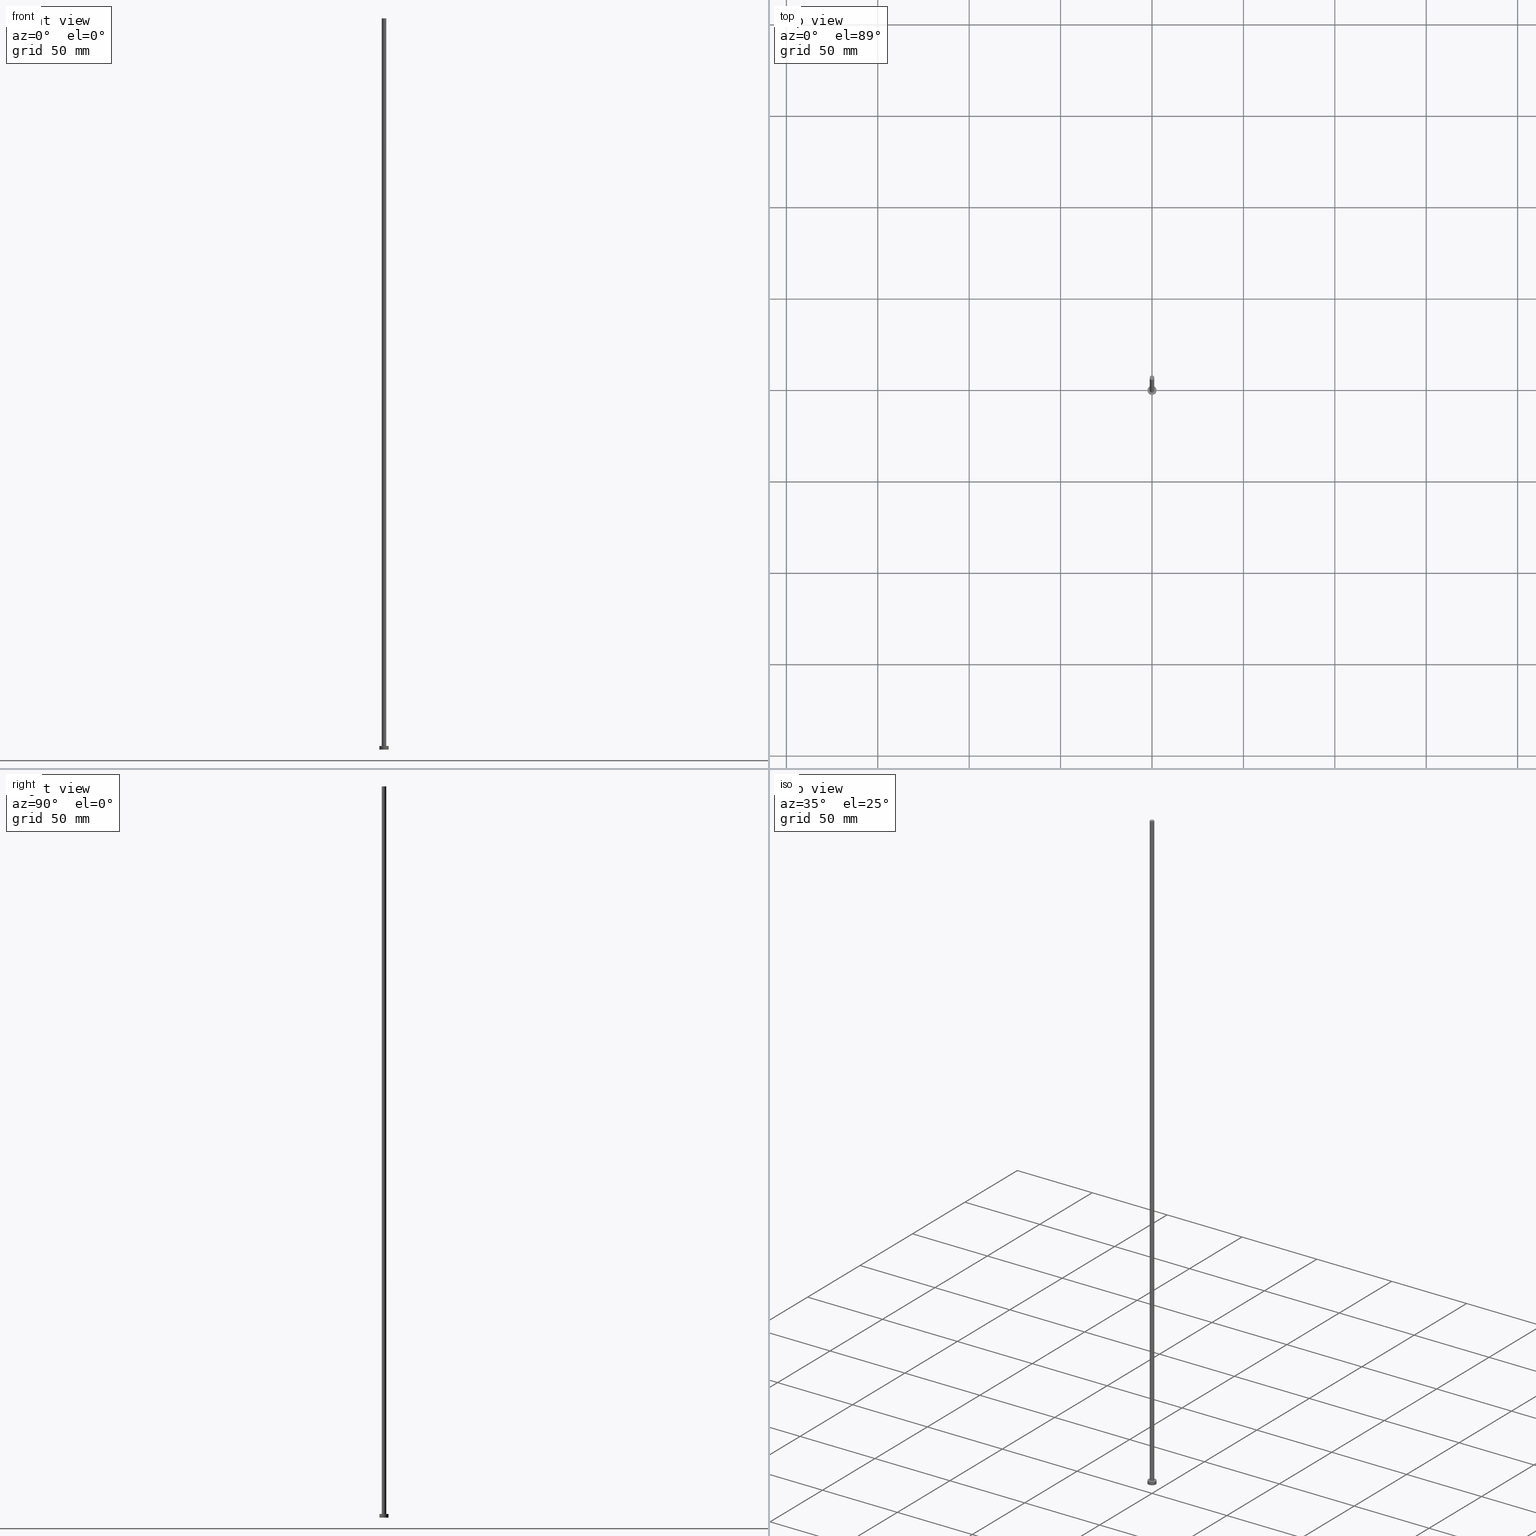
[diagram: canonical four-view strip — front | top / right | iso, engineering-drawing reading convention]
A machine part, canonical four-view strip (front | top / right | iso — engineering-drawing reading convention). The complete STEP part file that produces these views, byte-faithful:
ISO-10303-21;
HEADER;
FILE_DESCRIPTION (( 'STEP AP203' ),
    '1' );
FILE_NAME ('aa84.STEP',
    '2023-02-13T16:39:37',
    ( '' ),
    ( '' ),
    'SwSTEP 2.0',
    'SolidWorks 2019',
    '' );
FILE_SCHEMA (( 'CONFIG_CONTROL_DESIGN' ));
ENDSEC;

DATA;
#1 = ORIENTED_EDGE ( 'NONE', *, *, #165, .F. ) ;
#2 = COORDINATED_UNIVERSAL_TIME_OFFSET ( 1, 0, .AHEAD. ) ;
#3 = DIRECTION ( 'NONE',  ( -1.000000000000000000, 0.000000000000000000, 0.000000000000000000 ) ) ;
#4 = ORIENTED_EDGE ( 'NONE', *, *, #54, .F. ) ;
#5 = APPROVAL_ROLE ( '' ) ;
#6 = AXIS2_PLACEMENT_3D ( 'NONE', #140, #225, #77 ) ;
#7 = PRODUCT_DEFINITION_FORMATION_WITH_SPECIFIED_SOURCE ( 'LIBOVOLN�', '', #29, .NOT_KNOWN. ) ;
#8 = CARTESIAN_POINT ( 'NONE',  ( 1.250000000000000000, 1.530808498934191571E-16, 400.0000000000000000 ) ) ;
#9 = ORIENTED_EDGE ( 'NONE', *, *, #21, .F. ) ;
#10 = PERSON_AND_ORGANIZATION ( #189, #46 ) ;
#11 = FACE_OUTER_BOUND ( 'NONE', #141, .T. ) ;
#12 = APPROVAL ( #201, 'NEUR�EN�' ) ;
#13 = EDGE_CURVE ( 'NONE', #66, #74, #251, .T. ) ;
#14 = AXIS2_PLACEMENT_3D ( 'NONE', #57, #154, #111 ) ;
#15 = CARTESIAN_POINT ( 'NONE',  ( 0.000000000000000000, 0.000000000000000000, 0.000000000000000000 ) ) ;
#16 = ORIENTED_EDGE ( 'NONE', *, *, #96, .T. ) ;
#17 = FACE_BOUND ( 'NONE', #245, .T. ) ;
#18 = EDGE_CURVE ( 'NONE', #97, #223, #205, .T. ) ;
#19 = ORIENTED_EDGE ( 'NONE', *, *, #220, .F. ) ;
#20 = FACE_OUTER_BOUND ( 'NONE', #152, .T. ) ;
#21 = EDGE_CURVE ( 'NONE', #200, #55, #148, .T. ) ;
#22 = PERSON_AND_ORGANIZATION ( #189, #46 ) ;
#23 = LINE ( 'NONE', #94, #114 ) ;
#24 = CARTESIAN_POINT ( 'NONE',  ( 0.000000000000000000, 0.000000000000000000, 2.000000000000000000 ) ) ;
#25 = ORIENTED_EDGE ( 'NONE', *, *, #101, .T. ) ;
#26 = APPROVAL_STATUS ( 'not_yet_approved' ) ;
#27 = DIRECTION ( 'NONE',  ( -1.000000000000000000, 0.000000000000000000, 0.000000000000000000 ) ) ;
#28 = ORIENTED_EDGE ( 'NONE', *, *, #255, .T. ) ;
#29 = PRODUCT ( 'aa84', 'aa84', '', ( #70 ) ) ;
#30 = CC_DESIGN_PERSON_AND_ORGANIZATION_ASSIGNMENT ( #142, #227, ( #7 ) ) ;
#31 = EDGE_LOOP ( 'NONE', ( #162, #88 ) ) ;
#32 = CIRCLE ( 'NONE', #234, 2.500000000000000000 ) ;
#33 = CARTESIAN_POINT ( 'NONE',  ( 0.000000000000000000, 0.000000000000000000, 400.0000000000000000 ) ) ;
#34 = CARTESIAN_POINT ( 'NONE',  ( 0.000000000000000000, 0.000000000000000000, 0.000000000000000000 ) ) ;
#35 = APPROVAL ( #161, 'NEUR�EN�' ) ;
#36 = DIRECTION ( 'NONE',  ( -0.000000000000000000, -0.000000000000000000, -1.000000000000000000 ) ) ;
#37 = APPROVAL_ROLE ( '' ) ;
#38 = CALENDAR_DATE ( 2023, 13, 2 ) ;
#39 = CYLINDRICAL_SURFACE ( 'NONE', #149, 1.250000000000000000 ) ;
#40 = ORIENTED_EDGE ( 'NONE', *, *, #186, .F. ) ;
#41 = SECURITY_CLASSIFICATION_LEVEL ( 'unclassified' ) ;
#42 = ORIENTED_EDGE ( 'NONE', *, *, #49, .F. ) ;
#43 = DIRECTION ( 'NONE',  ( 1.000000000000000000, 0.000000000000000000, 0.000000000000000000 ) ) ;
#44 = DIRECTION ( 'NONE',  ( 0.000000000000000000, 0.000000000000000000, 1.000000000000000000 ) ) ;
#45 = AXIS2_PLACEMENT_3D ( 'NONE', #209, #156, #3 ) ;
#46 = ORGANIZATION ( 'NEUR�EN�', 'NEUR�EN�', '' ) ;
#47 = APPLICATION_CONTEXT ( 'configuration controlled 3d designs of mechanical parts and assemblies' ) ;
#48 = MANIFOLD_SOLID_BREP ( 'P�idat vysunut�m3', #188 ) ;
#49 = EDGE_CURVE ( 'NONE', #116, #55, #61, .T. ) ;
#50 = CARTESIAN_POINT ( 'NONE',  ( 0.000000000000000000, 0.000000000000000000, 400.0000000000000000 ) ) ;
#51 = CARTESIAN_POINT ( 'NONE',  ( 1.250000000000000000, 1.530808498934191571E-16, 2.000000000000000000 ) ) ;
#52 = DATE_TIME_ROLE ( 'classification_date' ) ;
#53 = CARTESIAN_POINT ( 'NONE',  ( -2.500000000000000000, 0.000000000000000000, 2.000000000000000000 ) ) ;
#54 = EDGE_CURVE ( 'NONE', #200, #95, #32, .T. ) ;
#55 = VERTEX_POINT ( 'NONE', #62 ) ;
#56 = PERSON_AND_ORGANIZATION_ROLE ( 'creator' ) ;
#57 = CARTESIAN_POINT ( 'NONE',  ( 0.000000000000000000, 0.000000000000000000, 2.000000000000000000 ) ) ;
#58 = ORIENTED_EDGE ( 'NONE', *, *, #130, .F. ) ;
#59 = PERSON_AND_ORGANIZATION ( #189, #46 ) ;
#60 = ORIENTED_EDGE ( 'NONE', *, *, #255, .F. ) ;
#61 = CIRCLE ( 'NONE', #86, 2.500000000000000000 ) ;
#62 = CARTESIAN_POINT ( 'NONE',  ( -2.500000000000000000, 0.000000000000000000, 0.000000000000000000 ) ) ;
#63 = AXIS2_PLACEMENT_3D ( 'NONE', #24, #131, #214 ) ;
#64 = DIRECTION ( 'NONE',  ( 0.000000000000000000, 0.000000000000000000, 1.000000000000000000 ) ) ;
#65 = CARTESIAN_POINT ( 'NONE',  ( 2.500000000000000000, 3.061616997868383141E-16, 0.000000000000000000 ) ) ;
#66 = VERTEX_POINT ( 'NONE', #123 ) ;
#67 = PERSON_AND_ORGANIZATION_ROLE ( 'creator' ) ;
#68 = LINE ( 'NONE', #8, #124 ) ;
#69 = ORIENTED_EDGE ( 'NONE', *, *, #18, .T. ) ;
#70 = MECHANICAL_CONTEXT ( 'NONE', #47, 'mechanical' ) ;
#71 = ORIENTED_EDGE ( 'NONE', *, *, #18, .F. ) ;
#72 = APPROVAL_DATE_TIME ( #179, #183 ) ;
#73 = CARTESIAN_POINT ( 'NONE',  ( 0.000000000000000000, 0.000000000000000000, 0.000000000000000000 ) ) ;
#74 = VERTEX_POINT ( 'NONE', #102 ) ;
#75 = AXIS2_PLACEMENT_3D ( 'NONE', #121, #249, #99 ) ;
#76 = APPROVAL_PERSON_ORGANIZATION ( #132, #183, #37 ) ;
#77 = DIRECTION ( 'NONE',  ( 1.000000000000000000, 0.000000000000000000, 0.000000000000000000 ) ) ;
#78 = APPLICATION_PROTOCOL_DEFINITION ( 'international standard', 'config_control_design', 1994, #171 ) ;
#79 = UNCERTAINTY_MEASURE_WITH_UNIT (LENGTH_MEASURE( 1.000000000000000082E-05 ), #197, 'distance_accuracy_value', 'NONE');
#80 = CYLINDRICAL_SURFACE ( 'NONE', #100, 2.500000000000000000 ) ;
#81 = PRODUCT_RELATED_PRODUCT_CATEGORY ( 'detail', '', ( #29 ) ) ;
#82 = AXIS2_PLACEMENT_3D ( 'NONE', #187, #167, #168 ) ;
#83 = CARTESIAN_POINT ( 'NONE',  ( 0.000000000000000000, 0.000000000000000000, 400.0000000000000000 ) ) ;
#84 = SHAPE_DEFINITION_REPRESENTATION ( #248, #139 ) ;
#85 = ADVANCED_FACE ( 'NONE', ( #11 ), #80, .T. ) ;
#86 = AXIS2_PLACEMENT_3D ( 'NONE', #144, #64, #43 ) ;
#87 = FACE_OUTER_BOUND ( 'NONE', #31, .T. ) ;
#88 = ORIENTED_EDGE ( 'NONE', *, *, #186, .T. ) ;
#89 = DIRECTION ( 'NONE',  ( 1.000000000000000000, 0.000000000000000000, -0.000000000000000000 ) ) ;
#90 = APPROVAL_PERSON_ORGANIZATION ( #22, #12, #5 ) ;
#91 = PERSON_AND_ORGANIZATION_ROLE ( 'design_owner' ) ;
#92 = EDGE_LOOP ( 'NONE', ( #19, #4, #238, #226 ) ) ;
#93 = APPROVAL_DATE_TIME ( #138, #12 ) ;
#94 = CARTESIAN_POINT ( 'NONE',  ( 2.500000000000000000, 3.061616997868383141E-16, 2.000000000000000000 ) ) ;
#95 = VERTEX_POINT ( 'NONE', #181 ) ;
#96 = EDGE_CURVE ( 'NONE', #74, #66, #107, .T. ) ;
#97 = VERTEX_POINT ( 'NONE', #250 ) ;
#98 = CALENDAR_DATE ( 2023, 13, 2 ) ;
#99 = DIRECTION ( 'NONE',  ( 1.000000000000000000, 0.000000000000000000, 0.000000000000000000 ) ) ;
#100 = AXIS2_PLACEMENT_3D ( 'NONE', #146, #229, #27 ) ;
#101 = EDGE_CURVE ( 'NONE', #74, #97, #106, .T. ) ;
#102 = CARTESIAN_POINT ( 'NONE',  ( -1.250000000000000000, 0.000000000000000000, 400.0000000000000000 ) ) ;
#103 = VECTOR ( 'NONE', #145, 1000.000000000000000 ) ;
#104 = SECURITY_CLASSIFICATION ( '', '', #41 ) ;
#105 = DIRECTION ( 'NONE',  ( 1.000000000000000000, 0.000000000000000000, -0.000000000000000000 ) ) ;
#106 = LINE ( 'NONE', #127, #150 ) ;
#107 = CIRCLE ( 'NONE', #243, 1.250000000000000000 ) ;
#108 = FACE_OUTER_BOUND ( 'NONE', #247, .T. ) ;
#109 = CC_DESIGN_APPROVAL ( #12, ( #133 ) ) ;
#110 = COORDINATED_UNIVERSAL_TIME_OFFSET ( 1, 0, .AHEAD. ) ;
#111 = DIRECTION ( 'NONE',  ( -1.000000000000000000, 0.000000000000000000, 0.000000000000000000 ) ) ;
#112 = DATE_TIME_ROLE ( 'creation_date' ) ;
#113 = DIRECTION ( 'NONE',  ( -0.000000000000000000, -0.000000000000000000, -1.000000000000000000 ) ) ;
#114 = VECTOR ( 'NONE', #113, 1000.000000000000000 ) ;
#115 = PLANE ( 'NONE',  #147 ) ;
#116 = VERTEX_POINT ( 'NONE', #65 ) ;
#117 = ADVANCED_FACE ( 'NONE', ( #253 ), #213, .T. ) ;
#118 = PERSON_AND_ORGANIZATION_ROLE ( 'classification_officer' ) ;
#119 = CYLINDRICAL_SURFACE ( 'NONE', #14, 2.500000000000000000 ) ;
#120 = CALENDAR_DATE ( 2023, 13, 2 ) ;
#121 = CARTESIAN_POINT ( 'NONE',  ( 0.000000000000000000, 0.000000000000000000, 400.0000000000000000 ) ) ;
#122 = DIRECTION ( 'NONE',  ( 1.000000000000000000, 0.000000000000000000, 0.000000000000000000 ) ) ;
#123 = CARTESIAN_POINT ( 'NONE',  ( 1.250000000000000000, 1.530808498934191571E-16, 400.0000000000000000 ) ) ;
#124 = VECTOR ( 'NONE', #240, 1000.000000000000000 ) ;
#125 = LOCAL_TIME ( 17, 39, 37.00000000000000000, #110 ) ;
#126 = ADVANCED_FACE ( 'NONE', ( #108 ), #254, .T. ) ;
#127 = CARTESIAN_POINT ( 'NONE',  ( -1.250000000000000000, 0.000000000000000000, 400.0000000000000000 ) ) ;
#128 = CC_DESIGN_DATE_AND_TIME_ASSIGNMENT ( #204, #52, ( #104 ) ) ;
#129 = CIRCLE ( 'NONE', #228, 2.500000000000000000 ) ;
#130 = EDGE_CURVE ( 'NONE', #55, #116, #129, .T. ) ;
#131 = DIRECTION ( 'NONE',  ( 0.000000000000000000, 0.000000000000000000, 1.000000000000000000 ) ) ;
#132 = PERSON_AND_ORGANIZATION ( #189, #46 ) ;
#133 = PRODUCT_DEFINITION ( 'NEZN�M�', '', #7, #163 ) ;
#134 = FACE_OUTER_BOUND ( 'NONE', #92, .T. ) ;
#135 = CARTESIAN_POINT ( 'NONE',  ( 0.000000000000000000, 0.000000000000000000, 2.000000000000000000 ) ) ;
#136 = CC_DESIGN_PERSON_AND_ORGANIZATION_ASSIGNMENT ( #10, #67, ( #133 ) ) ;
#137 = ORIENTED_EDGE ( 'NONE', *, *, #101, .F. ) ;
#138 = DATE_AND_TIME ( #194, #125 ) ;
#139 = ADVANCED_BREP_SHAPE_REPRESENTATION ( 'aa84', ( #48, #160 ), #210 ) ;
#140 = CARTESIAN_POINT ( 'NONE',  ( 0.000000000000000000, 0.000000000000000000, 2.000000000000000000 ) ) ;
#141 = EDGE_LOOP ( 'NONE', ( #40, #155, #159, #9 ) ) ;
#142 = PERSON_AND_ORGANIZATION ( #189, #46 ) ;
#143 = LOCAL_TIME ( 17, 39, 37.00000000000000000, #2 ) ;
#144 = CARTESIAN_POINT ( 'NONE',  ( 0.000000000000000000, 0.000000000000000000, 0.000000000000000000 ) ) ;
#145 = DIRECTION ( 'NONE',  ( -0.000000000000000000, -0.000000000000000000, -1.000000000000000000 ) ) ;
#146 = CARTESIAN_POINT ( 'NONE',  ( 0.000000000000000000, 0.000000000000000000, 2.000000000000000000 ) ) ;
#147 = AXIS2_PLACEMENT_3D ( 'NONE', #135, #172, #219 ) ;
#148 = LINE ( 'NONE', #166, #103 ) ;
#149 = AXIS2_PLACEMENT_3D ( 'NONE', #50, #36, #199 ) ;
#150 = VECTOR ( 'NONE', #190, 1000.000000000000000 ) ;
#151 = DIRECTION ( 'NONE',  ( 0.000000000000000000, 0.000000000000000000, 1.000000000000000000 ) ) ;
#152 = EDGE_LOOP ( 'NONE', ( #1, #178, #25, #69 ) ) ;
#153 = COORDINATED_UNIVERSAL_TIME_OFFSET ( 1, 0, .AHEAD. ) ;
#154 = DIRECTION ( 'NONE',  ( -0.000000000000000000, -0.000000000000000000, -1.000000000000000000 ) ) ;
#155 = ORIENTED_EDGE ( 'NONE', *, *, #220, .T. ) ;
#156 = DIRECTION ( 'NONE',  ( -0.000000000000000000, -0.000000000000000000, -1.000000000000000000 ) ) ;
#157 = ORIENTED_EDGE ( 'NONE', *, *, #13, .T. ) ;
#158 = DIRECTION ( 'NONE',  ( 0.000000000000000000, 0.000000000000000000, 1.000000000000000000 ) ) ;
#159 = ORIENTED_EDGE ( 'NONE', *, *, #49, .T. ) ;
#160 = AXIS2_PLACEMENT_3D ( 'NONE', #34, #242, #216 ) ;
#161 = APPROVAL_STATUS ( 'not_yet_approved' ) ;
#162 = ORIENTED_EDGE ( 'NONE', *, *, #54, .T. ) ;
#163 = DESIGN_CONTEXT ( 'detailed design', #171, 'design' ) ;
#164 = DATE_AND_TIME ( #173, #252 ) ;
#165 = EDGE_CURVE ( 'NONE', #66, #223, #68, .T. ) ;
#166 = CARTESIAN_POINT ( 'NONE',  ( -2.500000000000000000, 0.000000000000000000, 2.000000000000000000 ) ) ;
#167 = DIRECTION ( 'NONE',  ( 0.000000000000000000, 0.000000000000000000, 1.000000000000000000 ) ) ;
#168 = DIRECTION ( 'NONE',  ( 1.000000000000000000, 0.000000000000000000, 0.000000000000000000 ) ) ;
#169 = DIRECTION ( 'NONE',  ( 0.000000000000000000, 0.000000000000000000, 1.000000000000000000 ) ) ;
#170 = CC_DESIGN_DATE_AND_TIME_ASSIGNMENT ( #239, #112, ( #133 ) ) ;
#171 = APPLICATION_CONTEXT ( 'configuration controlled 3d designs of mechanical parts and assemblies' ) ;
#172 = DIRECTION ( 'NONE',  ( 0.000000000000000000, 0.000000000000000000, 1.000000000000000000 ) ) ;
#173 = CALENDAR_DATE ( 2023, 13, 2 ) ;
#174 =( NAMED_UNIT ( * ) PLANE_ANGLE_UNIT ( ) SI_UNIT ( $, .RADIAN. ) );
#175 = PERSON_AND_ORGANIZATION ( #189, #46 ) ;
#176 = ORIENTED_EDGE ( 'NONE', *, *, #13, .F. ) ;
#177 = PERSON_AND_ORGANIZATION ( #189, #46 ) ;
#178 = ORIENTED_EDGE ( 'NONE', *, *, #96, .F. ) ;
#179 = DATE_AND_TIME ( #98, #143 ) ;
#180 = ADVANCED_FACE ( 'NONE', ( #134 ), #119, .T. ) ;
#181 = CARTESIAN_POINT ( 'NONE',  ( 2.500000000000000000, 3.061616997868383141E-16, 2.000000000000000000 ) ) ;
#182 = ADVANCED_FACE ( 'NONE', ( #202 ), #195, .F. ) ;
#183 = APPROVAL ( #26, 'NEUR�EN�' ) ;
#184 = CIRCLE ( 'NONE', #6, 2.500000000000000000 ) ;
#185 = LOCAL_TIME ( 17, 39, 37.00000000000000000, #153 ) ;
#186 = EDGE_CURVE ( 'NONE', #95, #200, #184, .T. ) ;
#187 = CARTESIAN_POINT ( 'NONE',  ( 0.000000000000000000, 0.000000000000000000, 2.000000000000000000 ) ) ;
#188 = CLOSED_SHELL ( 'NONE', ( #126, #85, #180, #207, #182, #212, #117 ) ) ;
#189 = PERSON ( 'NEUR�EN�', 'NEUR�EN�', 'NEUR�EN�', ('NEUR�EN�'), ('NEUR�EN�'), ('NEUR�EN�') ) ;
#190 = DIRECTION ( 'NONE',  ( -0.000000000000000000, -0.000000000000000000, -1.000000000000000000 ) ) ;
#191 = AXIS2_PLACEMENT_3D ( 'NONE', #15, #158, #89 ) ;
#192 = CC_DESIGN_APPROVAL ( #183, ( #104 ) ) ;
#193 = EDGE_LOOP ( 'NONE', ( #16, #157 ) ) ;
#194 = CALENDAR_DATE ( 2023, 13, 2 ) ;
#195 = PLANE ( 'NONE',  #191 ) ;
#196 = APPROVAL_DATE_TIME ( #164, #35 ) ;
#197 =( LENGTH_UNIT ( ) NAMED_UNIT ( * ) SI_UNIT ( .MILLI., .METRE. ) );
#198 = APPLICATION_PROTOCOL_DEFINITION ( 'international standard', 'config_control_design', 1994, #47 ) ;
#199 = DIRECTION ( 'NONE',  ( -1.000000000000000000, 0.000000000000000000, 0.000000000000000000 ) ) ;
#200 = VERTEX_POINT ( 'NONE', #53 ) ;
#201 = APPROVAL_STATUS ( 'not_yet_approved' ) ;
#202 = FACE_OUTER_BOUND ( 'NONE', #241, .T. ) ;
#203 = ORIENTED_EDGE ( 'NONE', *, *, #165, .T. ) ;
#204 = DATE_AND_TIME ( #120, #208 ) ;
#205 = CIRCLE ( 'NONE', #82, 1.250000000000000000 ) ;
#206 =( NAMED_UNIT ( * ) SI_UNIT ( $, .STERADIAN. ) SOLID_ANGLE_UNIT ( ) );
#207 = ADVANCED_FACE ( 'NONE', ( #17, #87 ), #115, .T. ) ;
#208 = LOCAL_TIME ( 17, 39, 37.00000000000000000, #237 ) ;
#209 = CARTESIAN_POINT ( 'NONE',  ( 0.000000000000000000, 0.000000000000000000, 400.0000000000000000 ) ) ;
#210 =( GEOMETRIC_REPRESENTATION_CONTEXT ( 3 ) GLOBAL_UNCERTAINTY_ASSIGNED_CONTEXT ( ( #79 ) ) GLOBAL_UNIT_ASSIGNED_CONTEXT ( ( #197, #174, #206 ) ) REPRESENTATION_CONTEXT ( 'NONE', 'WORKASPACE' ) );
#211 = DIRECTION ( 'NONE',  ( 1.000000000000000000, 0.000000000000000000, 0.000000000000000000 ) ) ;
#212 = ADVANCED_FACE ( 'NONE', ( #20 ), #39, .T. ) ;
#213 = PLANE ( 'NONE',  #230 ) ;
#214 = DIRECTION ( 'NONE',  ( 1.000000000000000000, 0.000000000000000000, 0.000000000000000000 ) ) ;
#215 = CC_DESIGN_PERSON_AND_ORGANIZATION_ASSIGNMENT ( #59, #56, ( #7 ) ) ;
#216 = DIRECTION ( 'NONE',  ( 1.000000000000000000, 0.000000000000000000, 0.000000000000000000 ) ) ;
#217 = DIRECTION ( 'NONE',  ( 1.000000000000000000, 0.000000000000000000, 0.000000000000000000 ) ) ;
#218 = APPROVAL_ROLE ( '' ) ;
#219 = DIRECTION ( 'NONE',  ( 1.000000000000000000, 0.000000000000000000, -0.000000000000000000 ) ) ;
#220 = EDGE_CURVE ( 'NONE', #95, #116, #23, .T. ) ;
#221 = PERSON_AND_ORGANIZATION ( #189, #46 ) ;
#222 = CIRCLE ( 'NONE', #63, 1.250000000000000000 ) ;
#223 = VERTEX_POINT ( 'NONE', #51 ) ;
#224 = CC_DESIGN_PERSON_AND_ORGANIZATION_ASSIGNMENT ( #175, #118, ( #104 ) ) ;
#225 = DIRECTION ( 'NONE',  ( 0.000000000000000000, 0.000000000000000000, 1.000000000000000000 ) ) ;
#226 = ORIENTED_EDGE ( 'NONE', *, *, #130, .T. ) ;
#227 = PERSON_AND_ORGANIZATION_ROLE ( 'design_supplier' ) ;
#228 = AXIS2_PLACEMENT_3D ( 'NONE', #73, #151, #217 ) ;
#229 = DIRECTION ( 'NONE',  ( -0.000000000000000000, -0.000000000000000000, -1.000000000000000000 ) ) ;
#230 = AXIS2_PLACEMENT_3D ( 'NONE', #33, #169, #105 ) ;
#231 = CC_DESIGN_SECURITY_CLASSIFICATION ( #104, ( #7 ) ) ;
#232 = CARTESIAN_POINT ( 'NONE',  ( 0.000000000000000000, 0.000000000000000000, 2.000000000000000000 ) ) ;
#233 = CC_DESIGN_PERSON_AND_ORGANIZATION_ASSIGNMENT ( #177, #91, ( #29 ) ) ;
#234 = AXIS2_PLACEMENT_3D ( 'NONE', #232, #44, #122 ) ;
#235 = APPROVAL_PERSON_ORGANIZATION ( #221, #35, #218 ) ;
#236 = DIRECTION ( 'NONE',  ( 0.000000000000000000, 0.000000000000000000, 1.000000000000000000 ) ) ;
#237 = COORDINATED_UNIVERSAL_TIME_OFFSET ( 1, 0, .AHEAD. ) ;
#238 = ORIENTED_EDGE ( 'NONE', *, *, #21, .T. ) ;
#239 = DATE_AND_TIME ( #38, #185 ) ;
#240 = DIRECTION ( 'NONE',  ( -0.000000000000000000, -0.000000000000000000, -1.000000000000000000 ) ) ;
#241 = EDGE_LOOP ( 'NONE', ( #58, #42 ) ) ;
#242 = DIRECTION ( 'NONE',  ( 0.000000000000000000, 0.000000000000000000, 1.000000000000000000 ) ) ;
#243 = AXIS2_PLACEMENT_3D ( 'NONE', #83, #236, #211 ) ;
#244 = CC_DESIGN_APPROVAL ( #35, ( #7 ) ) ;
#245 = EDGE_LOOP ( 'NONE', ( #71, #60 ) ) ;
#246 = COORDINATED_UNIVERSAL_TIME_OFFSET ( 1, 0, .AHEAD. ) ;
#247 = EDGE_LOOP ( 'NONE', ( #176, #203, #28, #137 ) ) ;
#248 = PRODUCT_DEFINITION_SHAPE ( 'NONE', 'NONE',  #133 ) ;
#249 = DIRECTION ( 'NONE',  ( 0.000000000000000000, 0.000000000000000000, 1.000000000000000000 ) ) ;
#250 = CARTESIAN_POINT ( 'NONE',  ( -1.250000000000000000, 0.000000000000000000, 2.000000000000000000 ) ) ;
#251 = CIRCLE ( 'NONE', #75, 1.250000000000000000 ) ;
#252 = LOCAL_TIME ( 17, 39, 37.00000000000000000, #246 ) ;
#253 = FACE_OUTER_BOUND ( 'NONE', #193, .T. ) ;
#254 = CYLINDRICAL_SURFACE ( 'NONE', #45, 1.250000000000000000 ) ;
#255 = EDGE_CURVE ( 'NONE', #223, #97, #222, .T. ) ;
ENDSEC;
END-ISO-10303-21;
